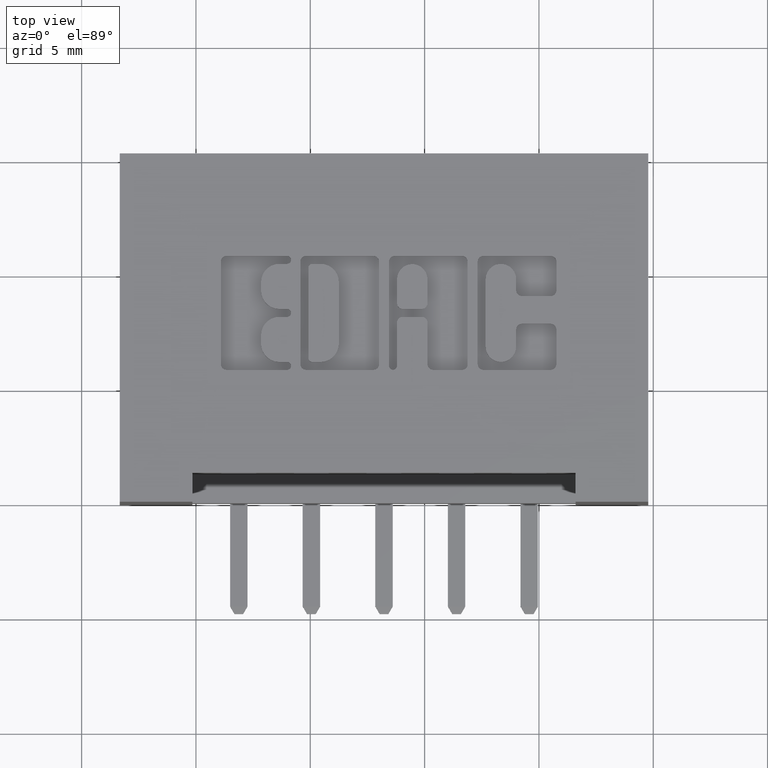
[diagram: clean part render]
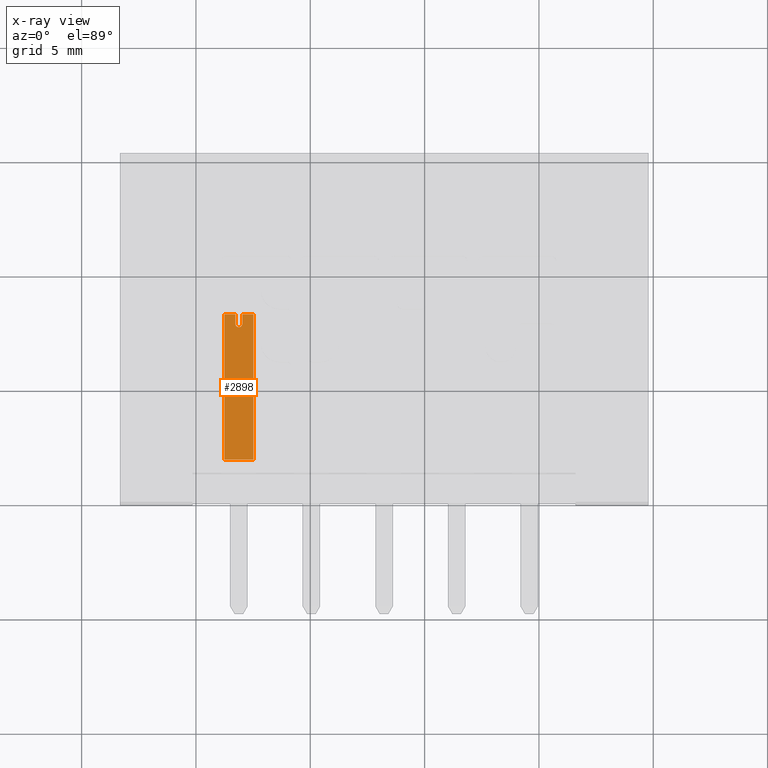
[diagram: x-ray — body ghosted, one internal face saturated and labeled with its STEP entity id]
A machine part, top view, then the same camera in x-ray: the body is ghosted and one INTERNAL B-rep face — a face not visible from any outside direction — is saturated and labeled: STEP entity #2898.
In plain terms, the highlighted planar face has unit normal (-0, 0, -1).
Its self-contained STEP definition (entity closure, byte-faithful):
#7 = VECTOR ( 'NONE', #4313, 39.37007874015748143 ) ;
#56 = CARTESIAN_POINT ( 'NONE',  ( 0.3300000000009306600, 0.01250000000002267700, -0.02499999999959610225 ) ) ;
#445 = DIRECTION ( 'NONE',  ( -4.267060447773494169E-14, -1.000000000000000000, -4.116852421096273087E-15 ) ) ;
#524 = CARTESIAN_POINT ( 'NONE',  ( 0.3300000000009306600, 0.01250000000002267700, -0.02499999999959610225 ) ) ;
#582 = EDGE_CURVE ( 'NONE', #3539, #2173, #2882, .T. ) ;
#591 = ORIENTED_EDGE ( 'NONE', *, *, #7611, .T. ) ;
#772 = EDGE_CURVE ( 'NONE', #4190, #5228, #2998, .T. ) ;
#935 = DIRECTION ( 'NONE',  ( 1.000000000000000000, -4.267060447773585046E-14, 2.212541756272989891E-13 ) ) ;
#940 = LINE ( 'NONE', #5849, #1530 ) ;
#997 = VECTOR ( 'NONE', #935, 39.37007874015748143 ) ;
#1066 = AXIS2_PLACEMENT_3D ( 'NONE', #1385, #6972, #3849 ) ;
#1093 = VERTEX_POINT ( 'NONE', #4026 ) ;
#1205 = VERTEX_POINT ( 'NONE', #5413 ) ;
#1274 = VERTEX_POINT ( 'NONE', #1577 ) ;
#1385 = CARTESIAN_POINT ( 'NONE',  ( 0.3462132034365487110, 0.01249999999996981651, 3.868296759028596544E-13 ) ) ;
#1530 = VECTOR ( 'NONE', #4052, 39.37007874015748143 ) ;
#1577 = CARTESIAN_POINT ( 'NONE',  ( 0.3300000000009952195, 0.01249999999999631441, 0.02500000000038806597 ) ) ;
#1660 = DIRECTION ( 'NONE',  ( 1.000000000000000000, -4.267060447773585046E-14, 2.212541756272989891E-13 ) ) ;
#1683 = LINE ( 'NONE', #56, #3397 ) ;
#1725 = CARTESIAN_POINT ( 'NONE',  ( 0.3462132034365654198, 0.01249999999996086880, 0.006000000000382886556 ) ) ;
#1937 = ORIENTED_EDGE ( 'NONE', *, *, #6455, .T. ) ;
#2173 = VERTEX_POINT ( 'NONE', #5542 ) ;
#2202 = ORIENTED_EDGE ( 'NONE', *, *, #3100, .T. ) ;
#2319 = VECTOR ( 'NONE', #7642, 39.37007874015748143 ) ;
#2632 = EDGE_CURVE ( 'NONE', #1093, #3539, #4275, .T. ) ;
#2657 = DIRECTION ( 'NONE',  ( 1.000000000000000000, -4.268512490086891095E-14, 2.212541756272979289E-13 ) ) ;
#2748 = EDGE_CURVE ( 'NONE', #1274, #1205, #940, .T. ) ;
#2833 = ORIENTED_EDGE ( 'NONE', *, *, #772, .T. ) ;
#2882 = LINE ( 'NONE', #6502, #4410 ) ;
#2898 = ADVANCED_FACE ( 'NONE', ( #6556 ), #5960, .T. ) ;
#2933 = CIRCLE ( 'NONE', #7305, 0.006000000000019004021 ) ;
#2965 = VECTOR ( 'NONE', #6079, 39.37007874015748143 ) ;
#2998 = CIRCLE ( 'NONE', #1066, 0.006000000000019004021 ) ;
#3100 = EDGE_CURVE ( 'NONE', #2173, #1205, #6995, .T. ) ;
#3343 = CARTESIAN_POINT ( 'NONE',  ( 0.3522132034365487718, 0.01249999999997007671, 3.145319894842180332E-13 ) ) ;
#3397 = VECTOR ( 'NONE', #4818, 39.37007874015748143 ) ;
#3539 = VERTEX_POINT ( 'NONE', #5741 ) ;
#3560 = CARTESIAN_POINT ( 'NONE',  ( 0.3300000000009306600, 0.01250000000002267700, -0.02499999999959610225 ) ) ;
#3624 = LINE ( 'NONE', #4775, #2965 ) ;
#3670 = EDGE_CURVE ( 'NONE', #4706, #1093, #3624, .T. ) ;
#3849 = DIRECTION ( 'NONE',  ( 1.000000000000000000, -4.268512490086891095E-14, 2.212541756272979289E-13 ) ) ;
#4026 = CARTESIAN_POINT ( 'NONE',  ( 0.3300000000009400414, 0.01250000000000949657, -0.005999999999610866087 ) ) ;
#4052 = DIRECTION ( 'NONE',  ( 1.000000000000000000, -4.267060447773585046E-14, 2.212541756272989891E-13 ) ) ;
#4120 = AXIS2_PLACEMENT_3D ( 'NONE', #524, #445, #6624 ) ;
#4190 = VERTEX_POINT ( 'NONE', #1725 ) ;
#4275 = LINE ( 'NONE', #3560, #7 ) ;
#4313 = DIRECTION ( 'NONE',  ( -2.212541756280696494E-13, -4.116852421051615671E-15, -1.000000000000000000 ) ) ;
#4318 = EDGE_LOOP ( 'NONE', ( #5861, #1937, #2833, #591, #7480, #7024, #5954, #2202, #6538 ) ) ;
#4410 = VECTOR ( 'NONE', #1660, 39.37007874015748143 ) ;
#4438 = LINE ( 'NONE', #5202, #997 ) ;
#4622 = CARTESIAN_POINT ( 'NONE',  ( 0.5802132034373870262, 0.01249999999998292928, 0.02500000000042194165 ) ) ;
#4706 = VERTEX_POINT ( 'NONE', #7006 ) ;
#4775 = CARTESIAN_POINT ( 'NONE',  ( 0.3300000000009400414, 0.01250000000000949657, -0.005999999999610866087 ) ) ;
#4818 = DIRECTION ( 'NONE',  ( -2.212541756280696494E-13, -4.116852421051615671E-15, -1.000000000000000000 ) ) ;
#4887 = EDGE_CURVE ( 'NONE', #1274, #5802, #1683, .T. ) ;
#4964 = CARTESIAN_POINT ( 'NONE',  ( 0.3300000000009690737, 0.01249999999995103465, 0.006000000000389442943 ) ) ;
#5202 = CARTESIAN_POINT ( 'NONE',  ( 0.3300000000009690737, 0.01249999999995103465, 0.006000000000389442943 ) ) ;
#5228 = VERTEX_POINT ( 'NONE', #3343 ) ;
#5413 = CARTESIAN_POINT ( 'NONE',  ( 0.5802132034373870262, 0.01249999999998292928, 0.02500000000042194165 ) ) ;
#5542 = CARTESIAN_POINT ( 'NONE',  ( 0.5802132034373196356, 0.01249999999996189402, -0.02499999999952234181 ) ) ;
#5741 = CARTESIAN_POINT ( 'NONE',  ( 0.3300000000009306600, 0.01250000000002267700, -0.02499999999959610225 ) ) ;
#5802 = VERTEX_POINT ( 'NONE', #4964 ) ;
#5849 = CARTESIAN_POINT ( 'NONE',  ( 0.3300000000009952195, 0.01249999999999631441, 0.02500000000038806597 ) ) ;
#5861 = ORIENTED_EDGE ( 'NONE', *, *, #4887, .T. ) ;
#5954 = ORIENTED_EDGE ( 'NONE', *, *, #582, .T. ) ;
#5960 = PLANE ( 'NONE',  #4120 ) ;
#6079 = DIRECTION ( 'NONE',  ( -1.000000000000000000, 4.267060447773574949E-14, -2.211261202525964220E-13 ) ) ;
#6455 = EDGE_CURVE ( 'NONE', #5802, #4190, #4438, .T. ) ;
#6502 = CARTESIAN_POINT ( 'NONE',  ( 0.3300000000009306600, 0.01250000000002267700, -0.02499999999959610225 ) ) ;
#6538 = ORIENTED_EDGE ( 'NONE', *, *, #2748, .F. ) ;
#6556 = FACE_OUTER_BOUND ( 'NONE', #4318, .T. ) ;
#6624 = DIRECTION ( 'NONE',  ( 1.000000000000000000, -4.267060447773585046E-14, 2.212541756272989639E-13 ) ) ;
#6972 = DIRECTION ( 'NONE',  ( -4.338724405532104450E-14, 1.000000000000000000, 4.116852421077233140E-15 ) ) ;
#6995 = LINE ( 'NONE', #4622, #2319 ) ;
#7006 = CARTESIAN_POINT ( 'NONE',  ( 0.3462132034365363875, 0.01249999999999091942, -0.005999999999617422475 ) ) ;
#7024 = ORIENTED_EDGE ( 'NONE', *, *, #2632, .T. ) ;
#7029 = CARTESIAN_POINT ( 'NONE',  ( 0.3462132034365487110, 0.01249999999996981651, 3.868296759028596544E-13 ) ) ;
#7074 = DIRECTION ( 'NONE',  ( -4.338724405532104450E-14, 1.000000000000000000, 4.116852421077233140E-15 ) ) ;
#7305 = AXIS2_PLACEMENT_3D ( 'NONE', #7029, #7074, #2657 ) ;
#7480 = ORIENTED_EDGE ( 'NONE', *, *, #3670, .T. ) ;
#7611 = EDGE_CURVE ( 'NONE', #5228, #4706, #2933, .T. ) ;
#7642 = DIRECTION ( 'NONE',  ( 2.212541756280696494E-13, 4.116852421051615671E-15, 1.000000000000000000 ) ) ;